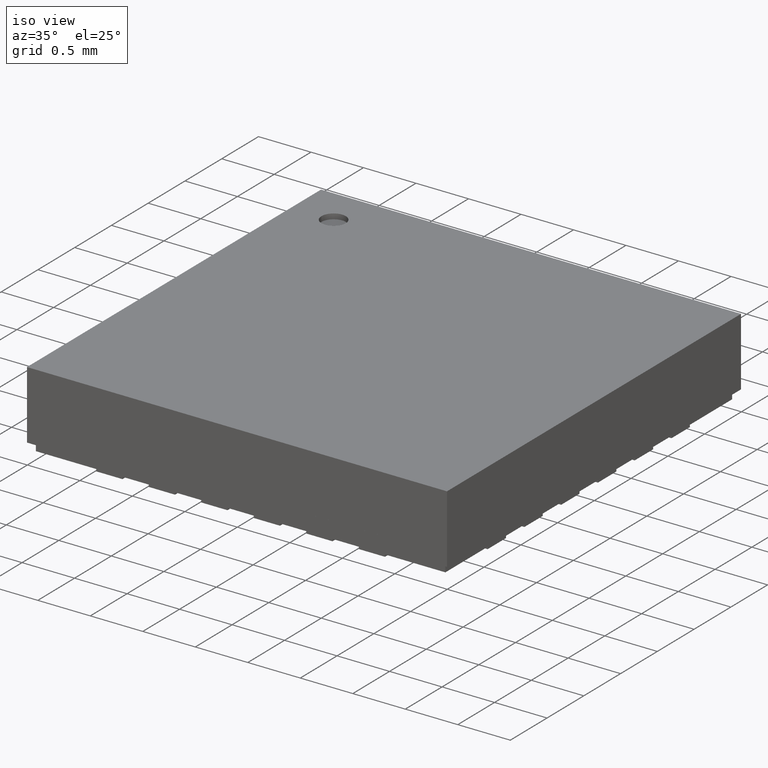
[diagram: clean part render]
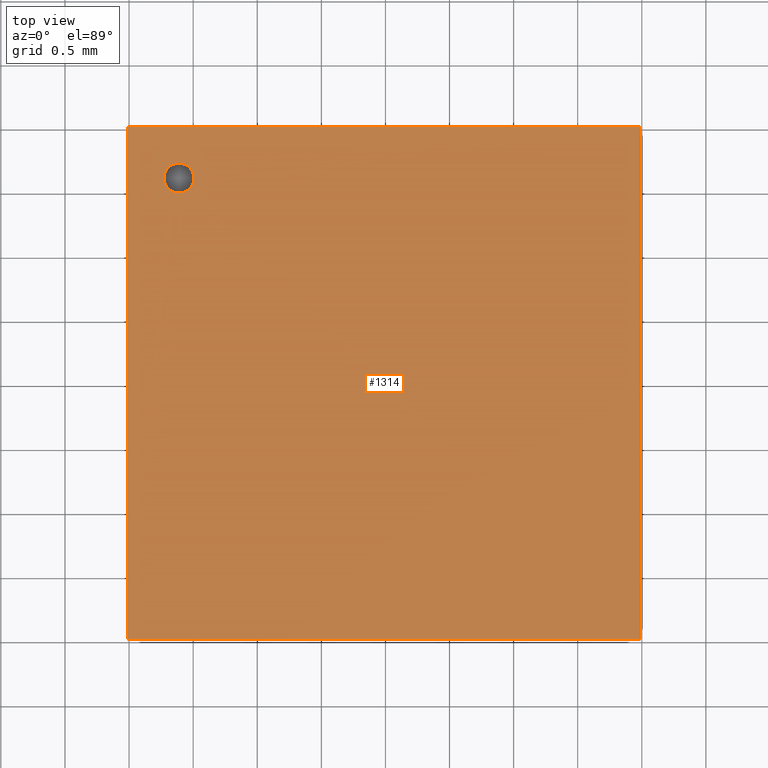
[diagram: tour spotlight — one face highlighted and labeled with its STEP entity id]
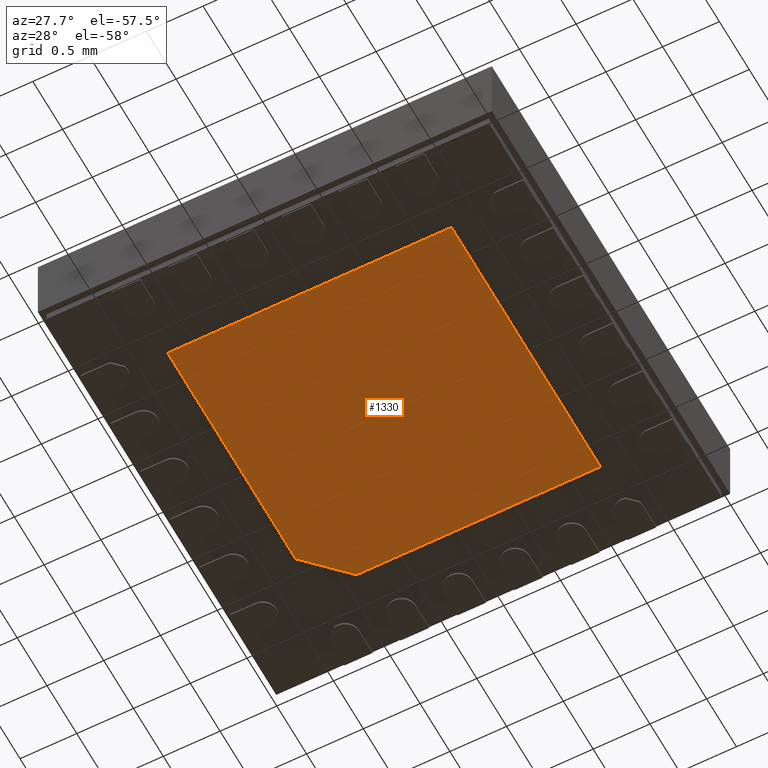
[diagram: tour spotlight — one face highlighted and labeled with its STEP entity id]
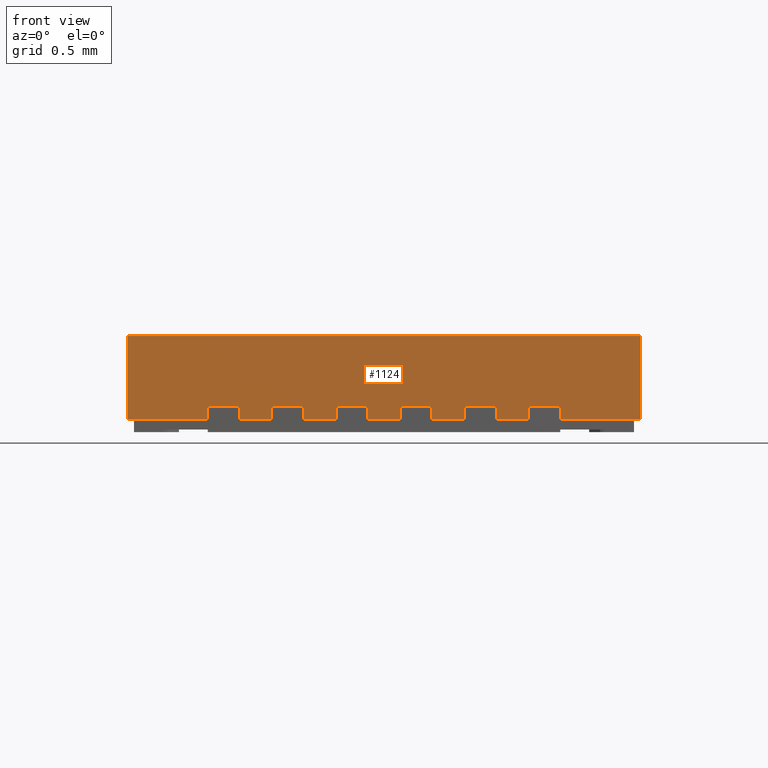
[diagram: tour spotlight — one face highlighted and labeled with its STEP entity id]
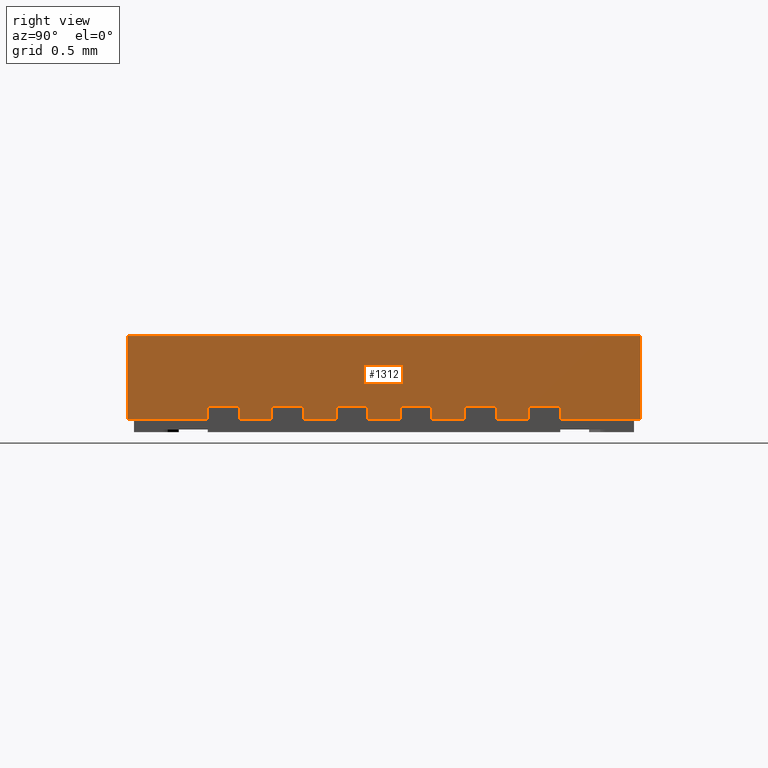
[diagram: tour spotlight — one face highlighted and labeled with its STEP entity id]
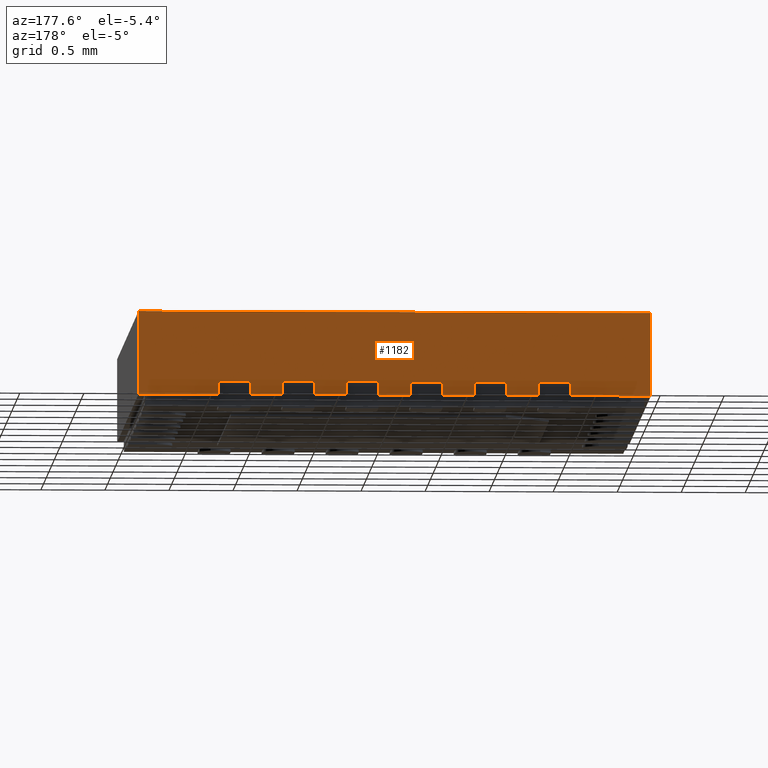
[diagram: tour spotlight — one face highlighted and labeled with its STEP entity id]
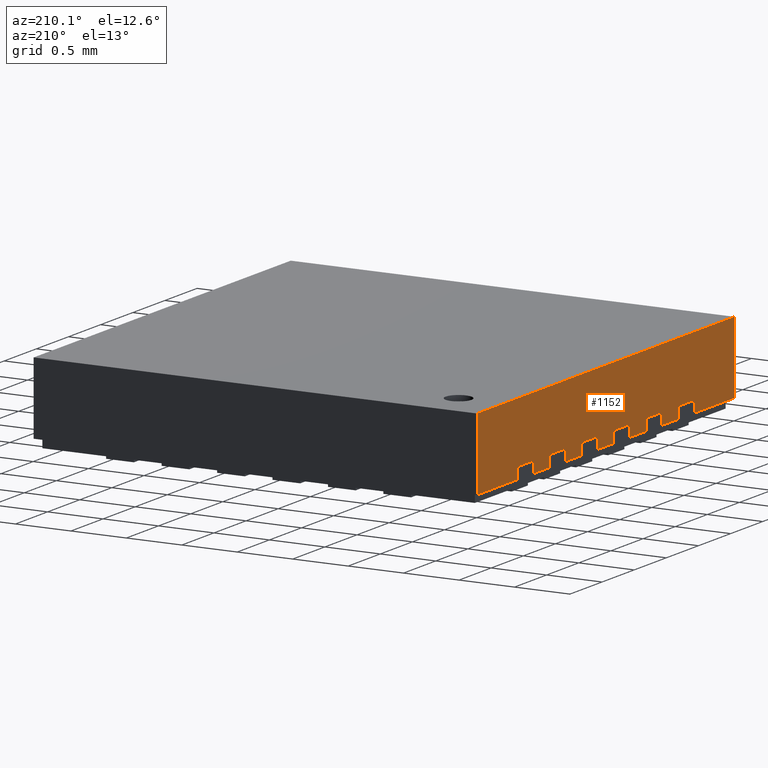
[diagram: tour spotlight — one face highlighted and labeled with its STEP entity id]
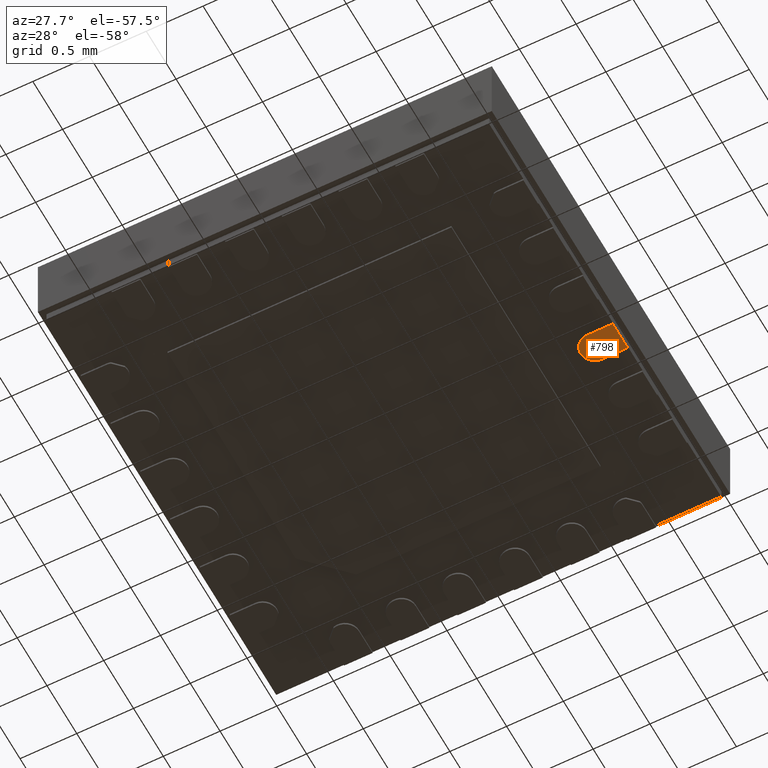
[diagram: tour spotlight — one face highlighted and labeled with its STEP entity id]
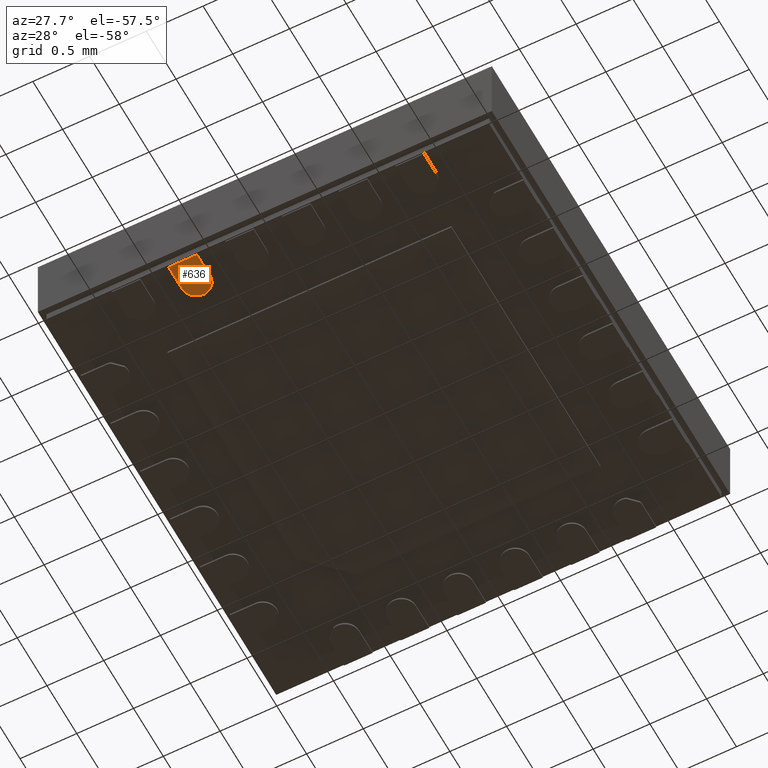
[diagram: tour spotlight — one face highlighted and labeled with its STEP entity id]
A machine part: a face-by-face anatomy tour. The part has 394 B-rep faces; the first image is the clean iso view, then the 8 largest visible faces are spotlighted one at a time (largest first), each with its STEP entity span.

Face 1 — top view, entity #1314. In plain terms, the highlighted planar face has unit normal (0, 0, 1).
Definition (entity closure, byte-faithful):
#1314=ADVANCED_FACE('',(#2582,#2583),#2584,.T.);
#2582=FACE_BOUND('',#3875,.T.);
#2583=FACE_OUTER_BOUND('',#3876,.T.);
#2584=PLANE('',#3877);
#3875=EDGE_LOOP('',(#7475,#7476));
#3876=EDGE_LOOP('',(#7477,#7478,#7479,#7480));
#3877=AXIS2_PLACEMENT_3D('',#7481,#7482,#7483);
#7475=ORIENTED_EDGE('',*,*,#8262,.T.);
#7476=ORIENTED_EDGE('',*,*,#8260,.T.);
#7477=ORIENTED_EDGE('',*,*,#8958,.F.);
#7478=ORIENTED_EDGE('',*,*,#8791,.F.);
#7479=ORIENTED_EDGE('',*,*,#8746,.F.);
#7480=ORIENTED_EDGE('',*,*,#8707,.F.);
#7481=CARTESIAN_POINT('',(-0.0112166299113343,0.0112165452801234,0.75));
#7482=DIRECTION('',(0.0,0.0,1.0));
#7483=DIRECTION('',(1.0,0.0,0.0));
#8260=EDGE_CURVE('',#10018,#10022,#10024,.T.);
#8262=EDGE_CURVE('',#10022,#10018,#10026,.T.);
#8707=EDGE_CURVE('',#10748,#10750,#10751,.T.);
#8746=EDGE_CURVE('',#10750,#10800,#10801,.T.);
#8791=EDGE_CURVE('',#10800,#10858,#10859,.T.);
#8958=EDGE_CURVE('',#10858,#10748,#11068,.T.);
#10018=VERTEX_POINT('',#12554);
#10022=VERTEX_POINT('',#12559);
#10024=CIRCLE('',#12562,0.116318990685727);
#10026=CIRCLE('',#12564,0.116318990685727);
#10748=VERTEX_POINT('',#13613);
#10750=VERTEX_POINT('',#13616);
#10751=LINE('',#13617,#13618);
#10800=VERTEX_POINT('',#13686);
#10801=LINE('',#13687,#13688);
#10858=VERTEX_POINT('',#13769);
#10859=LINE('',#13770,#13771);
#11068=LINE('',#14060,#14061);
#12554=CARTESIAN_POINT('',(-1.49489763922552,1.61121654528009,0.75));
#12559=CARTESIAN_POINT('',(-1.72753562059697,1.61121654528009,0.75));
#12562=AXIS2_PLACEMENT_3D('',#14725,#14726,#14727);
#12564=AXIS2_PLACEMENT_3D('',#14728,#14729,#14730);
#13613=CARTESIAN_POINT('',(1.98878337008867,-1.98878345471982,0.75));
#13616=CARTESIAN_POINT('',(-2.01121662991133,-1.98878345471982,0.75));
#13617=CARTESIAN_POINT('',(-2.01121662991133,-1.98878345471982,0.75));
#13618=VECTOR('',#15161,1.0);
#13686=CARTESIAN_POINT('',(-2.01121662991133,2.01121654528007,0.75));
#13687=CARTESIAN_POINT('',(-2.01121662991133,2.01121654528007,0.75));
#13688=VECTOR('',#15196,1.0);
#13769=CARTESIAN_POINT('',(1.98878337008867,2.01121654528007,0.75));
#13770=CARTESIAN_POINT('',(1.98878337008867,2.01121654528007,0.75));
#13771=VECTOR('',#15236,1.0);
#14060=CARTESIAN_POINT('',(1.98878337008867,-1.98878345471982,0.75));
#14061=VECTOR('',#15380,1.0);
#14725=CARTESIAN_POINT('',(-1.61121662991124,1.61121654528009,0.75));
#14726=DIRECTION('',(0.0,0.0,-1.0));
#14727=DIRECTION('',(1.0,1.90892822931172E-15,0.0));
#14728=CARTESIAN_POINT('',(-1.61121662991124,1.61121654528009,0.75));
#14729=DIRECTION('',(0.0,0.0,-1.0));
#14730=DIRECTION('',(1.0,1.90892822931172E-15,0.0));
#15161=DIRECTION('',(-1.0,-0.0,-0.0));
#15196=DIRECTION('',(0.0,1.0,0.0));
#15236=DIRECTION('',(1.0,0.0,0.0));
#15380=DIRECTION('',(-0.0,-1.0,-0.0));

Face 2 — auxiliary view, entity #1330. In plain terms, the highlighted planar face has unit normal (0, 0, 1).
Definition (entity closure, byte-faithful):
#1330=ADVANCED_FACE('',(#2606),#2607,.F.);
#2606=FACE_OUTER_BOUND('',#3898,.T.);
#2607=PLANE('',#3899);
#3898=EDGE_LOOP('',(#7535,#7536,#7537,#7538,#7539));
#3899=AXIS2_PLACEMENT_3D('',#7540,#7541,#7542);
#7535=ORIENTED_EDGE('',*,*,#8980,.F.);
#7536=ORIENTED_EDGE('',*,*,#8964,.F.);
#7537=ORIENTED_EDGE('',*,*,#8969,.F.);
#7538=ORIENTED_EDGE('',*,*,#8973,.F.);
#7539=ORIENTED_EDGE('',*,*,#8977,.F.);
#7540=CARTESIAN_POINT('',(0.0175381299973912,-0.0175382146286024,0.0));
#7541=DIRECTION('',(0.0,0.0,1.0));
#7542=DIRECTION('',(1.0,0.0,0.0));
#8964=EDGE_CURVE('',#11075,#11077,#11078,.T.);
#8969=EDGE_CURVE('',#11083,#11075,#11085,.T.);
#8973=EDGE_CURVE('',#11089,#11083,#11091,.T.);
#8977=EDGE_CURVE('',#11095,#11089,#11097,.T.);
#8980=EDGE_CURVE('',#11077,#11095,#11100,.T.);
#11075=VERTEX_POINT('',#14069);
#11077=VERTEX_POINT('',#14072);
#11078=LINE('',#14073,#14074);
#11083=VERTEX_POINT('',#14081);
#11085=LINE('',#14084,#14085);
#11089=VERTEX_POINT('',#14090);
#11091=LINE('',#14093,#14094);
#11095=VERTEX_POINT('',#14099);
#11097=LINE('',#14102,#14103);
#11100=LINE('',#14107,#14108);
#14069=CARTESIAN_POINT('',(1.23878337008867,-1.23878345471988,0.0));
#14072=CARTESIAN_POINT('',(1.23878337008867,1.26121654528012,0.0));
#14073=CARTESIAN_POINT('',(1.23878337008867,-1.23878345471988,0.0));
#14074=VECTOR('',#15383,1.0);
#14081=CARTESIAN_POINT('',(-1.26121662991133,-1.23878345471988,0.0));
#14084=CARTESIAN_POINT('',(-1.26121662991133,-1.23878345471988,0.0));
#14085=VECTOR('',#15387,1.0);
#14090=CARTESIAN_POINT('',(-1.26121662991133,0.911216545280101,0.0));
#14093=CARTESIAN_POINT('',(-1.26121662991133,0.911216545280101,0.0));
#14094=VECTOR('',#15390,1.0);
#14099=CARTESIAN_POINT('',(-0.911216629911311,1.26121654528012,0.0));
#14102=CARTESIAN_POINT('',(-0.911216629911311,1.26121654528012,0.0));
#14103=VECTOR('',#15393,1.0);
#14107=CARTESIAN_POINT('',(1.23878337008867,1.26121654528012,0.0));
#14108=VECTOR('',#15395,1.0);
#15383=DIRECTION('',(3.5527136788005E-16,1.0,0.0));
#15387=DIRECTION('',(1.0,-5.32907051820075E-16,0.0));
#15390=DIRECTION('',(-4.13106241720993E-16,-1.0,0.0));
#15393=DIRECTION('',(-0.707106781186548,-0.707106781186548,0.0));
#15395=DIRECTION('',(-1.0,4.13106241720993E-16,0.0));

Face 3 — front view, entity #1124. In plain terms, the highlighted planar face has unit normal (0, -1, 0).
Definition (entity closure, byte-faithful):
#1124=ADVANCED_FACE('',(#2297),#2298,.T.);
#2297=FACE_OUTER_BOUND('',#3590,.T.);
#2298=PLANE('',#3591);
#3590=EDGE_LOOP('',(#6556,#6557,#6558,#6559,#6560,#6561,#6562,#6563,#6564,#6565,#6566,#6567,#6568,#6569,#6570,#6571,#6572,#6573,#6574,#6575,#6576,#6577,#6578,#6579,#6580,#6581,#6582,#6583));
#3591=AXIS2_PLACEMENT_3D('',#6584,#6585,#6586);
#6556=ORIENTED_EDGE('',*,*,#8499,.T.);
#6557=ORIENTED_EDGE('',*,*,#8700,.T.);
#6558=ORIENTED_EDGE('',*,*,#8701,.T.);
#6559=ORIENTED_EDGE('',*,*,#8517,.T.);
#6560=ORIENTED_EDGE('',*,*,#8492,.T.);
#6561=ORIENTED_EDGE('',*,*,#8702,.T.);
#6562=ORIENTED_EDGE('',*,*,#8703,.T.);
#6563=ORIENTED_EDGE('',*,*,#8522,.T.);
#6564=ORIENTED_EDGE('',*,*,#8484,.T.);
#6565=ORIENTED_EDGE('',*,*,#8704,.T.);
#6566=ORIENTED_EDGE('',*,*,#8705,.T.);
#6567=ORIENTED_EDGE('',*,*,#8527,.T.);
#6568=ORIENTED_EDGE('',*,*,#8475,.T.);
#6569=ORIENTED_EDGE('',*,*,#8706,.T.);
#6570=ORIENTED_EDGE('',*,*,#8707,.T.);
#6571=ORIENTED_EDGE('',*,*,#8708,.F.);
#6572=ORIENTED_EDGE('',*,*,#8469,.T.);
#6573=ORIENTED_EDGE('',*,*,#8709,.T.);
#6574=ORIENTED_EDGE('',*,*,#8710,.T.);
#6575=ORIENTED_EDGE('',*,*,#8512,.T.);
#6576=ORIENTED_EDGE('',*,*,#8480,.T.);
#6577=ORIENTED_EDGE('',*,*,#8711,.T.);
#6578=ORIENTED_EDGE('',*,*,#8712,.T.);
#6579=ORIENTED_EDGE('',*,*,#8507,.T.);
#6580=ORIENTED_EDGE('',*,*,#8488,.T.);
#6581=ORIENTED_EDGE('',*,*,#8694,.T.);
#6582=ORIENTED_EDGE('',*,*,#8698,.T.);
#6583=ORIENTED_EDGE('',*,*,#8502,.T.);
#6584=CARTESIAN_POINT('',(-0.0112166299113343,-1.98878345471982,0.02));
#6585=DIRECTION('',(0.0,-1.0,0.0));
#6586=DIRECTION('',(1.0,0.0,0.0));
#8469=EDGE_CURVE('',#10372,#10370,#10373,.T.);
#8475=EDGE_CURVE('',#10383,#10381,#10384,.T.);
#8480=EDGE_CURVE('',#10390,#10388,#10391,.T.);
#8484=EDGE_CURVE('',#10396,#10394,#10397,.T.);
#8488=EDGE_CURVE('',#10402,#10400,#10403,.T.);
#8492=EDGE_CURVE('',#10408,#10406,#10409,.T.);
#8499=EDGE_CURVE('',#10418,#10416,#10419,.T.);
#8502=EDGE_CURVE('',#10422,#10418,#10423,.T.);
#8507=EDGE_CURVE('',#10430,#10402,#10431,.T.);
#8512=EDGE_CURVE('',#10438,#10390,#10439,.T.);
#8517=EDGE_CURVE('',#10446,#10408,#10447,.T.);
#8522=EDGE_CURVE('',#10454,#10396,#10455,.T.);
#8527=EDGE_CURVE('',#10462,#10383,#10463,.T.);
#8694=EDGE_CURVE('',#10400,#10731,#10733,.T.);
#8698=EDGE_CURVE('',#10731,#10422,#10737,.T.);
#8700=EDGE_CURVE('',#10416,#10739,#10740,.T.);
#8701=EDGE_CURVE('',#10739,#10446,#10741,.T.);
#8702=EDGE_CURVE('',#10406,#10742,#10743,.T.);
#8703=EDGE_CURVE('',#10742,#10454,#10744,.T.);
#8704=EDGE_CURVE('',#10394,#10745,#10746,.T.);
#8705=EDGE_CURVE('',#10745,#10462,#10747,.T.);
#8706=EDGE_CURVE('',#10381,#10748,#10749,.T.);
#8707=EDGE_CURVE('',#10748,#10750,#10751,.T.);
#8708=EDGE_CURVE('',#10372,#10750,#10752,.T.);
#8709=EDGE_CURVE('',#10370,#10753,#10754,.T.);
#8710=EDGE_CURVE('',#10753,#10438,#10755,.T.);
#8711=EDGE_CURVE('',#10388,#10756,#10757,.T.);
#8712=EDGE_CURVE('',#10756,#10430,#10758,.T.);
#10370=VERTEX_POINT('',#13066);
#10372=VERTEX_POINT('',#13069);
#10373=LINE('',#13070,#13071);
#10381=VERTEX_POINT('',#13082);
#10383=VERTEX_POINT('',#13085);
#10384=LINE('',#13086,#13087);
#10388=VERTEX_POINT('',#13093);
#10390=VERTEX_POINT('',#13096);
#10391=LINE('',#13097,#13098);
#10394=VERTEX_POINT('',#13102);
#10396=VERTEX_POINT('',#13105);
#10397=LINE('',#13106,#13107);
#10400=VERTEX_POINT('',#13111);
#10402=VERTEX_POINT('',#13114);
#10403=LINE('',#13115,#13116);
#10406=VERTEX_POINT('',#13120);
#10408=VERTEX_POINT('',#13123);
#10409=LINE('',#13124,#13125);
#10416=VERTEX_POINT('',#13135);
#10418=VERTEX_POINT('',#13138);
#10419=LINE('',#13139,#13140);
#10422=VERTEX_POINT('',#13144);
#10423=LINE('',#13145,#13146);
#10430=VERTEX_POINT('',#13156);
#10431=LINE('',#13157,#13158);
#10438=VERTEX_POINT('',#13168);
#10439=LINE('',#13169,#13170);
#10446=VERTEX_POINT('',#13180);
#10447=LINE('',#13181,#13182);
#10454=VERTEX_POINT('',#13192);
#10455=LINE('',#13193,#13194);
#10462=VERTEX_POINT('',#13204);
#10463=LINE('',#13205,#13206);
#10731=VERTEX_POINT('',#13587);
#10733=LINE('',#13590,#13591);
#10737=LINE('',#13595,#13596);
#10739=VERTEX_POINT('',#13598);
#10740=LINE('',#13599,#13600);
#10741=LINE('',#13601,#13602);
#10742=VERTEX_POINT('',#13603);
#10743=LINE('',#13604,#13605);
#10744=LINE('',#13606,#13607);
#10745=VERTEX_POINT('',#13608);
#10746=LINE('',#13609,#13610);
#10747=LINE('',#13611,#13612);
#10748=VERTEX_POINT('',#13613);
#10749=LINE('',#13614,#13615);
#10750=VERTEX_POINT('',#13616);
#10751=LINE('',#13617,#13618);
#10752=LINE('',#13619,#13620);
#10753=VERTEX_POINT('',#13621);
#10754=LINE('',#13622,#13623);
#10755=LINE('',#13624,#13625);
#10756=VERTEX_POINT('',#13626);
#10757=LINE('',#13627,#13628);
#10758=LINE('',#13629,#13630);
#13066=CARTESIAN_POINT('',(-1.38621662990974,-1.98878345471982,0.1));
#13069=CARTESIAN_POINT('',(-2.01121662991133,-1.98878345471982,0.1));
#13070=CARTESIAN_POINT('',(0.976283370088677,-1.98878345471982,0.1));
#13071=VECTOR('',#14893,1.0);
#13082=CARTESIAN_POINT('',(1.98878337008867,-1.98878345471982,0.1));
#13085=CARTESIAN_POINT('',(1.36378337009026,-1.98878345471982,0.1));
#13086=CARTESIAN_POINT('',(0.976283370088677,-1.98878345471982,0.1));
#13087=VECTOR('',#14898,1.0);
#13093=CARTESIAN_POINT('',(-0.886216629909743,-1.98878345471982,0.1));
#13096=CARTESIAN_POINT('',(-1.13621662990974,-1.98878345471982,0.1));
#13097=CARTESIAN_POINT('',(0.976283370088677,-1.98878345471982,0.1));
#13098=VECTOR('',#14902,1.0);
#13102=CARTESIAN_POINT('',(1.11378337009026,-1.98878345471982,0.1));
#13105=CARTESIAN_POINT('',(0.863783370090257,-1.98878345471982,0.1));
#13106=CARTESIAN_POINT('',(0.976283370088677,-1.98878345471982,0.1));
#13107=VECTOR('',#14905,1.0);
#13111=CARTESIAN_POINT('',(-0.386216629909743,-1.98878345471982,0.1));
#13114=CARTESIAN_POINT('',(-0.636216629909743,-1.98878345471982,0.1));
#13115=CARTESIAN_POINT('',(0.976283370088677,-1.98878345471982,0.1));
#13116=VECTOR('',#14908,1.0);
#13120=CARTESIAN_POINT('',(0.613783370090257,-1.98878345471982,0.1));
#13123=CARTESIAN_POINT('',(0.363783370090257,-1.98878345471982,0.1));
#13124=CARTESIAN_POINT('',(0.976283370088677,-1.98878345471982,0.1));
#13125=VECTOR('',#14911,1.0);
#13135=CARTESIAN_POINT('',(0.113783370090257,-1.98878345471982,0.1));
#13138=CARTESIAN_POINT('',(-0.136216629909743,-1.98878345471982,0.1));
#13139=CARTESIAN_POINT('',(0.976283370088677,-1.98878345471982,0.1));
#13140=VECTOR('',#14916,1.0);
#13144=CARTESIAN_POINT('',(-0.136216629909743,-1.98878345471985,0.203));
#13145=CARTESIAN_POINT('',(-0.136216629909743,-1.98878345471982,0.01));
#13146=VECTOR('',#14918,1.0);
#13156=CARTESIAN_POINT('',(-0.636216629909743,-1.98878345471986,0.203));
#13157=CARTESIAN_POINT('',(-0.636216629909743,-1.98878345471982,0.01));
#13158=VECTOR('',#14922,1.0);
#13168=CARTESIAN_POINT('',(-1.13621662990974,-1.98878345471986,0.203));
#13169=CARTESIAN_POINT('',(-1.13621662990974,-1.98878345471982,0.01));
#13170=VECTOR('',#14926,1.0);
#13180=CARTESIAN_POINT('',(0.363783370090257,-1.98878345471984,0.203));
#13181=CARTESIAN_POINT('',(0.363783370090257,-1.98878345471982,0.01));
#13182=VECTOR('',#14930,1.0);
#13192=CARTESIAN_POINT('',(0.863783370090258,-1.98878345471984,0.203));
#13193=CARTESIAN_POINT('',(0.863783370090258,-1.98878345471982,0.01));
#13194=VECTOR('',#14934,1.0);
#13204=CARTESIAN_POINT('',(1.36378337009026,-1.98878345471983,0.203));
#13205=CARTESIAN_POINT('',(1.36378337009026,-1.98878345471982,0.01));
#13206=VECTOR('',#14938,1.0);
#13587=CARTESIAN_POINT('',(-0.386216629909743,-1.98878345471985,0.203));
#13590=CARTESIAN_POINT('',(-0.386216629909743,-1.98878345471985,0.01));
#13591=VECTOR('',#15149,1.0);
#13595=CARTESIAN_POINT('',(-0.136216629910539,-1.98878345471982,0.203));
#13596=VECTOR('',#15153,1.0);
#13598=CARTESIAN_POINT('',(0.113783370090258,-1.98878345471985,0.203));
#13599=CARTESIAN_POINT('',(0.113783370090258,-1.98878345471985,0.01));
#13600=VECTOR('',#15154,1.0);
#13601=CARTESIAN_POINT('',(0.113783370089461,-1.98878345471982,0.203));
#13602=VECTOR('',#15155,1.0);
#13603=CARTESIAN_POINT('',(0.613783370090257,-1.98878345471984,0.203));
#13604=CARTESIAN_POINT('',(0.613783370090257,-1.98878345471984,0.01));
#13605=VECTOR('',#15156,1.0);
#13606=CARTESIAN_POINT('',(0.363783370089461,-1.98878345471982,0.203));
#13607=VECTOR('',#15157,1.0);
#13608=CARTESIAN_POINT('',(1.11378337009026,-1.98878345471983,0.203));
#13609=CARTESIAN_POINT('',(1.11378337009026,-1.98878345471983,0.01));
#13610=VECTOR('',#15158,1.0);
#13611=CARTESIAN_POINT('',(0.613436986502316,-1.98878345471982,0.203));
#13612=VECTOR('',#15159,1.0);
#13613=CARTESIAN_POINT('',(1.98878337008867,-1.98878345471982,0.75));
#13614=CARTESIAN_POINT('',(1.98878337008867,-1.98878345471982,0.02));
#13615=VECTOR('',#15160,1.0);
#13616=CARTESIAN_POINT('',(-2.01121662991133,-1.98878345471982,0.75));
#13617=CARTESIAN_POINT('',(-2.01121662991133,-1.98878345471982,0.75));
#13618=VECTOR('',#15161,1.0);
#13619=CARTESIAN_POINT('',(-2.01121662991133,-1.98878345471982,0.02));
#13620=VECTOR('',#15162,1.0);
#13621=CARTESIAN_POINT('',(-1.38621662990974,-1.98878345471987,0.203));
#13622=CARTESIAN_POINT('',(-1.38621662990974,-1.98878345471987,0.01));
#13623=VECTOR('',#15163,1.0);
#13624=CARTESIAN_POINT('',(-0.635870246323488,-1.98878345471982,0.203));
#13625=VECTOR('',#15164,1.0);
#13626=CARTESIAN_POINT('',(-0.886216629909743,-1.98878345471986,0.203));
#13627=CARTESIAN_POINT('',(-0.886216629909743,-1.98878345471986,0.01));
#13628=VECTOR('',#15165,1.0);
#13629=CARTESIAN_POINT('',(-0.386216629910539,-1.98878345471982,0.203));
#13630=VECTOR('',#15166,1.0);
#14893=DIRECTION('',(1.0,0.0,-0.0));
#14898=DIRECTION('',(1.0,0.0,-0.0));
#14902=DIRECTION('',(1.0,0.0,-0.0));
#14905=DIRECTION('',(1.0,0.0,-0.0));
#14908=DIRECTION('',(1.0,0.0,-0.0));
#14911=DIRECTION('',(1.0,0.0,-0.0));
#14916=DIRECTION('',(1.0,0.0,-0.0));
#14918=DIRECTION('',(0.0,0.0,-1.0));
#14922=DIRECTION('',(0.0,0.0,-1.0));
#14926=DIRECTION('',(0.0,0.0,-1.0));
#14930=DIRECTION('',(0.0,0.0,-1.0));
#14934=DIRECTION('',(0.0,-0.0,-1.0));
#14938=DIRECTION('',(0.0,0.0,-1.0));
#15149=DIRECTION('',(0.0,0.0,1.0));
#15153=DIRECTION('',(1.0,0.0,-0.0));
#15154=DIRECTION('',(0.0,0.0,1.0));
#15155=DIRECTION('',(1.0,0.0,-0.0));
#15156=DIRECTION('',(0.0,0.0,1.0));
#15157=DIRECTION('',(1.0,0.0,-0.0));
#15158=DIRECTION('',(0.0,0.0,1.0));
#15159=DIRECTION('',(1.0,0.0,-0.0));
#15160=DIRECTION('',(0.0,0.0,1.0));
#15161=DIRECTION('',(-1.0,-0.0,-0.0));
#15162=DIRECTION('',(0.0,0.0,1.0));
#15163=DIRECTION('',(0.0,0.0,1.0));
#15164=DIRECTION('',(1.0,0.0,-0.0));
#15165=DIRECTION('',(0.0,0.0,1.0));
#15166=DIRECTION('',(1.0,0.0,-0.0));

Face 4 — right view, entity #1312. In plain terms, the highlighted planar face has unit normal (1, 0, 0).
Definition (entity closure, byte-faithful):
#1312=ADVANCED_FACE('',(#2579),#2580,.T.);
#2579=FACE_OUTER_BOUND('',#3872,.T.);
#2580=PLANE('',#3873);
#3872=EDGE_LOOP('',(#7443,#7444,#7445,#7446,#7447,#7448,#7449,#7450,#7451,#7452,#7453,#7454,#7455,#7456,#7457,#7458,#7459,#7460,#7461,#7462,#7463,#7464,#7465,#7466,#7467,#7468,#7469,#7470));
#3873=AXIS2_PLACEMENT_3D('',#7471,#7472,#7473);
#7443=ORIENTED_EDGE('',*,*,#8474,.T.);
#7444=ORIENTED_EDGE('',*,*,#8902,.T.);
#7445=ORIENTED_EDGE('',*,*,#8904,.T.);
#7446=ORIENTED_EDGE('',*,*,#8597,.T.);
#7447=ORIENTED_EDGE('',*,*,#8465,.T.);
#7448=ORIENTED_EDGE('',*,*,#8888,.T.);
#7449=ORIENTED_EDGE('',*,*,#8890,.T.);
#7450=ORIENTED_EDGE('',*,*,#8602,.T.);
#7451=ORIENTED_EDGE('',*,*,#8457,.T.);
#7452=ORIENTED_EDGE('',*,*,#8880,.T.);
#7453=ORIENTED_EDGE('',*,*,#8882,.T.);
#7454=ORIENTED_EDGE('',*,*,#8607,.T.);
#7455=ORIENTED_EDGE('',*,*,#8449,.T.);
#7456=ORIENTED_EDGE('',*,*,#8872,.T.);
#7457=ORIENTED_EDGE('',*,*,#8874,.T.);
#7458=ORIENTED_EDGE('',*,*,#8612,.T.);
#7459=ORIENTED_EDGE('',*,*,#8441,.T.);
#7460=ORIENTED_EDGE('',*,*,#8864,.T.);
#7461=ORIENTED_EDGE('',*,*,#8866,.T.);
#7462=ORIENTED_EDGE('',*,*,#8688,.T.);
#7463=ORIENTED_EDGE('',*,*,#8433,.T.);
#7464=ORIENTED_EDGE('',*,*,#8856,.T.);
#7465=ORIENTED_EDGE('',*,*,#8858,.T.);
#7466=ORIENTED_EDGE('',*,*,#8587,.T.);
#7467=ORIENTED_EDGE('',*,*,#8426,.T.);
#7468=ORIENTED_EDGE('',*,*,#8792,.T.);
#7469=ORIENTED_EDGE('',*,*,#8958,.T.);
#7470=ORIENTED_EDGE('',*,*,#8706,.F.);
#7471=CARTESIAN_POINT('',(1.98878337008867,0.0112165452801232,0.02));
#7472=DIRECTION('',(1.0,0.0,0.0));
#7473=DIRECTION('',(0.0,1.0,0.0));
#8426=EDGE_CURVE('',#10302,#10306,#10308,.T.);
#8433=EDGE_CURVE('',#10318,#10316,#10319,.T.);
#8441=EDGE_CURVE('',#10330,#10328,#10331,.T.);
#8449=EDGE_CURVE('',#10342,#10340,#10343,.T.);
#8457=EDGE_CURVE('',#10354,#10352,#10355,.T.);
#8465=EDGE_CURVE('',#10366,#10364,#10367,.T.);
#8474=EDGE_CURVE('',#10381,#10378,#10382,.T.);
#8587=EDGE_CURVE('',#10558,#10302,#10559,.T.);
#8597=EDGE_CURVE('',#10574,#10366,#10575,.T.);
#8602=EDGE_CURVE('',#10582,#10354,#10583,.T.);
#8607=EDGE_CURVE('',#10590,#10342,#10591,.T.);
#8612=EDGE_CURVE('',#10598,#10330,#10599,.T.);
#8688=EDGE_CURVE('',#10723,#10318,#10724,.T.);
#8706=EDGE_CURVE('',#10381,#10748,#10749,.T.);
#8792=EDGE_CURVE('',#10306,#10858,#10860,.T.);
#8856=EDGE_CURVE('',#10316,#10939,#10941,.T.);
#8858=EDGE_CURVE('',#10939,#10558,#10943,.T.);
#8864=EDGE_CURVE('',#10328,#10949,#10951,.T.);
#8866=EDGE_CURVE('',#10949,#10723,#10953,.T.);
#8872=EDGE_CURVE('',#10340,#10959,#10961,.T.);
#8874=EDGE_CURVE('',#10959,#10598,#10963,.T.);
#8880=EDGE_CURVE('',#10352,#10969,#10971,.T.);
#8882=EDGE_CURVE('',#10969,#10590,#10973,.T.);
#8888=EDGE_CURVE('',#10364,#10979,#10981,.T.);
#8890=EDGE_CURVE('',#10979,#10582,#10983,.T.);
#8902=EDGE_CURVE('',#10378,#10997,#10999,.T.);
#8904=EDGE_CURVE('',#10997,#10574,#11001,.T.);
#8958=EDGE_CURVE('',#10858,#10748,#11068,.T.);
#10302=VERTEX_POINT('',#12964);
#10306=VERTEX_POINT('',#12970);
#10308=LINE('',#12973,#12974);
#10316=VERTEX_POINT('',#12985);
#10318=VERTEX_POINT('',#12988);
#10319=LINE('',#12989,#12990);
#10328=VERTEX_POINT('',#13003);
#10330=VERTEX_POINT('',#13006);
#10331=LINE('',#13007,#13008);
#10340=VERTEX_POINT('',#13021);
#10342=VERTEX_POINT('',#13024);
#10343=LINE('',#13025,#13026);
#10352=VERTEX_POINT('',#13039);
#10354=VERTEX_POINT('',#13042);
#10355=LINE('',#13043,#13044);
#10364=VERTEX_POINT('',#13057);
#10366=VERTEX_POINT('',#13060);
#10367=LINE('',#13061,#13062);
#10378=VERTEX_POINT('',#13078);
#10381=VERTEX_POINT('',#13082);
#10382=LINE('',#13083,#13084);
#10558=VERTEX_POINT('',#13348);
#10559=LINE('',#13349,#13350);
#10574=VERTEX_POINT('',#13372);
#10575=LINE('',#13373,#13374);
#10582=VERTEX_POINT('',#13384);
#10583=LINE('',#13385,#13386);
#10590=VERTEX_POINT('',#13396);
#10591=LINE('',#13397,#13398);
#10598=VERTEX_POINT('',#13408);
#10599=LINE('',#13409,#13410);
#10723=VERTEX_POINT('',#13575);
#10724=LINE('',#13576,#13577);
#10748=VERTEX_POINT('',#13613);
#10749=LINE('',#13614,#13615);
#10858=VERTEX_POINT('',#13769);
#10860=LINE('',#13772,#13773);
#10939=VERTEX_POINT('',#13881);
#10941=LINE('',#13884,#13885);
#10943=LINE('',#13887,#13888);
#10949=VERTEX_POINT('',#13895);
#10951=LINE('',#13898,#13899);
#10953=LINE('',#13901,#13902);
#10959=VERTEX_POINT('',#13909);
#10961=LINE('',#13912,#13913);
#10963=LINE('',#13915,#13916);
#10969=VERTEX_POINT('',#13923);
#10971=LINE('',#13926,#13927);
#10973=LINE('',#13929,#13930);
#10979=VERTEX_POINT('',#13937);
#10981=LINE('',#13940,#13941);
#10983=LINE('',#13943,#13944);
#10997=VERTEX_POINT('',#13962);
#10999=LINE('',#13965,#13966);
#11001=LINE('',#13968,#13969);
#11068=LINE('',#14060,#14061);
#12964=CARTESIAN_POINT('',(1.98878337008867,1.38621654528183,0.1));
#12970=CARTESIAN_POINT('',(1.98878337008867,2.01121654528007,0.1));
#12973=CARTESIAN_POINT('',(1.98878337008867,0.0237165452801118,0.1));
#12974=VECTOR('',#14861,1.0);
#12985=CARTESIAN_POINT('',(1.98878337008867,1.13621654528177,0.1));
#12988=CARTESIAN_POINT('',(1.98878337008867,0.886216545281828,0.1));
#12989=CARTESIAN_POINT('',(1.98878337008867,0.0237165452801118,0.1));
#12990=VECTOR('',#14866,1.0);
#13003=CARTESIAN_POINT('',(1.98878337008867,0.636216545281772,0.1));
#13006=CARTESIAN_POINT('',(1.98878337008867,0.386216545281828,0.1));
#13007=CARTESIAN_POINT('',(1.98878337008867,0.0237165452801118,0.1));
#13008=VECTOR('',#14872,1.0);
#13021=CARTESIAN_POINT('',(1.98878337008867,0.136216545281772,0.1));
#13024=CARTESIAN_POINT('',(1.98878337008867,-0.113783454718172,0.1));
#13025=CARTESIAN_POINT('',(1.98878337008867,0.0237165452801118,0.1));
#13026=VECTOR('',#14878,1.0);
#13039=CARTESIAN_POINT('',(1.98878337008867,-0.363783454718228,0.1));
#13042=CARTESIAN_POINT('',(1.98878337008867,-0.613783454718172,0.1));
#13043=CARTESIAN_POINT('',(1.98878337008867,0.0237165452801118,0.1));
#13044=VECTOR('',#14884,1.0);
#13057=CARTESIAN_POINT('',(1.98878337008867,-0.863783454718228,0.1));
#13060=CARTESIAN_POINT('',(1.98878337008867,-1.11378345471817,0.1));
#13061=CARTESIAN_POINT('',(1.98878337008867,0.0237165452801118,0.1));
#13062=VECTOR('',#14890,1.0);
#13078=CARTESIAN_POINT('',(1.98878337008867,-1.36378345471823,0.1));
#13082=CARTESIAN_POINT('',(1.98878337008867,-1.98878345471982,0.1));
#13083=CARTESIAN_POINT('',(1.98878337008867,0.0237165452801118,0.1));
#13084=VECTOR('',#14897,1.0);
#13348=CARTESIAN_POINT('',(1.98878337008867,1.38621654528183,0.203));
#13349=CARTESIAN_POINT('',(1.98878337008867,1.38621654528183,0.01));
#13350=VECTOR('',#14986,1.0);
#13372=CARTESIAN_POINT('',(1.98878337008867,-1.11378345471817,0.203));
#13373=CARTESIAN_POINT('',(1.98878337008867,-1.11378345471817,0.01));
#13374=VECTOR('',#14994,1.0);
#13384=CARTESIAN_POINT('',(1.98878337008867,-0.613783454718172,0.203));
#13385=CARTESIAN_POINT('',(1.98878337008867,-0.613783454718172,0.01));
#13386=VECTOR('',#14998,1.0);
#13396=CARTESIAN_POINT('',(1.98878337008867,-0.113783454718172,0.203));
#13397=CARTESIAN_POINT('',(1.98878337008867,-0.113783454718172,0.01));
#13398=VECTOR('',#15002,1.0);
#13408=CARTESIAN_POINT('',(1.98878337008867,0.386216545281828,0.203));
#13409=CARTESIAN_POINT('',(1.98878337008867,0.386216545281828,0.01));
#13410=VECTOR('',#15006,1.0);
#13575=CARTESIAN_POINT('',(1.98878337008866,0.886216545281828,0.203));
#13576=CARTESIAN_POINT('',(1.98878337008867,0.886216545281828,0.01));
#13577=VECTOR('',#15144,1.0);
#13613=CARTESIAN_POINT('',(1.98878337008867,-1.98878345471982,0.75));
#13614=CARTESIAN_POINT('',(1.98878337008867,-1.98878345471982,0.02));
#13615=VECTOR('',#15160,1.0);
#13769=CARTESIAN_POINT('',(1.98878337008867,2.01121654528007,0.75));
#13772=CARTESIAN_POINT('',(1.98878337008867,2.01121654528007,0.02));
#13773=VECTOR('',#15237,1.0);
#13881=CARTESIAN_POINT('',(1.98878337008867,1.13621654528177,0.203));
#13884=CARTESIAN_POINT('',(1.98878337008867,1.13621654528177,0.01));
#13885=VECTOR('',#15295,1.0);
#13887=CARTESIAN_POINT('',(1.98878337008867,0.635870161693816,0.203));
#13888=VECTOR('',#15296,1.0);
#13895=CARTESIAN_POINT('',(1.98878337008867,0.636216545281772,0.203));
#13898=CARTESIAN_POINT('',(1.98878337008867,0.636216545281772,0.01));
#13899=VECTOR('',#15302,1.0);
#13901=CARTESIAN_POINT('',(1.98878337008867,0.386216545280962,0.203));
#13902=VECTOR('',#15303,1.0);
#13909=CARTESIAN_POINT('',(1.98878337008867,0.136216545281772,0.203));
#13912=CARTESIAN_POINT('',(1.98878337008867,0.136216545281772,0.01));
#13913=VECTOR('',#15309,1.0);
#13915=CARTESIAN_POINT('',(1.98878337008867,0.136216545280962,0.203));
#13916=VECTOR('',#15310,1.0);
#13923=CARTESIAN_POINT('',(1.98878337008867,-0.363783454718228,0.203));
#13926=CARTESIAN_POINT('',(1.98878337008867,-0.363783454718228,0.01));
#13927=VECTOR('',#15316,1.0);
#13929=CARTESIAN_POINT('',(1.98878337008867,-0.113783454719038,0.203));
#13930=VECTOR('',#15317,1.0);
#13937=CARTESIAN_POINT('',(1.98878337008867,-0.863783454718228,0.203));
#13940=CARTESIAN_POINT('',(1.98878337008867,-0.863783454718228,0.01));
#13941=VECTOR('',#15323,1.0);
#13943=CARTESIAN_POINT('',(1.98878337008867,-0.363783454719038,0.203));
#13944=VECTOR('',#15324,1.0);
#13962=CARTESIAN_POINT('',(1.98878337008867,-1.36378345471823,0.203));
#13965=CARTESIAN_POINT('',(1.98878337008867,-1.36378345471823,0.01));
#13966=VECTOR('',#15336,1.0);
#13968=CARTESIAN_POINT('',(1.98878337008867,-0.613437071131991,0.203));
#13969=VECTOR('',#15337,1.0);
#14060=CARTESIAN_POINT('',(1.98878337008867,-1.98878345471982,0.75));
#14061=VECTOR('',#15380,1.0);
#14861=DIRECTION('',(0.0,1.0,0.0));
#14866=DIRECTION('',(0.0,1.0,0.0));
#14872=DIRECTION('',(0.0,1.0,0.0));
#14878=DIRECTION('',(0.0,1.0,0.0));
#14884=DIRECTION('',(0.0,1.0,0.0));
#14890=DIRECTION('',(0.0,1.0,0.0));
#14897=DIRECTION('',(0.0,1.0,0.0));
#14986=DIRECTION('',(0.0,-0.0,-1.0));
#14994=DIRECTION('',(0.0,-0.0,-1.0));
#14998=DIRECTION('',(0.0,-0.0,-1.0));
#15002=DIRECTION('',(0.0,-0.0,-1.0));
#15006=DIRECTION('',(0.0,-0.0,-1.0));
#15144=DIRECTION('',(0.0,-0.0,-1.0));
#15160=DIRECTION('',(0.0,0.0,1.0));
#15237=DIRECTION('',(0.0,0.0,1.0));
#15295=DIRECTION('',(-0.0,0.0,1.0));
#15296=DIRECTION('',(0.0,1.0,0.0));
#15302=DIRECTION('',(-0.0,0.0,1.0));
#15303=DIRECTION('',(0.0,1.0,0.0));
#15309=DIRECTION('',(-0.0,0.0,1.0));
#15310=DIRECTION('',(0.0,1.0,0.0));
#15316=DIRECTION('',(-0.0,0.0,1.0));
#15317=DIRECTION('',(0.0,1.0,0.0));
#15323=DIRECTION('',(-0.0,0.0,1.0));
#15324=DIRECTION('',(0.0,1.0,0.0));
#15336=DIRECTION('',(-0.0,0.0,1.0));
#15337=DIRECTION('',(0.0,1.0,0.0));
#15380=DIRECTION('',(-0.0,-1.0,-0.0));

Face 5 — auxiliary view, entity #1182. In plain terms, the highlighted planar face has unit normal (0, 1, -0).
Definition (entity closure, byte-faithful):
#1182=ADVANCED_FACE('',(#2384),#2385,.T.);
#2384=FACE_OUTER_BOUND('',#3677,.T.);
#2385=PLANE('',#3678);
#3677=EDGE_LOOP('',(#6856,#6857,#6858,#6859,#6860,#6861,#6862,#6863,#6864,#6865,#6866,#6867,#6868,#6869,#6870,#6871,#6872,#6873,#6874,#6875,#6876,#6877,#6878,#6879,#6880,#6881,#6882,#6883));
#3678=AXIS2_PLACEMENT_3D('',#6884,#6885,#6886);
#6856=ORIENTED_EDGE('',*,*,#8420,.T.);
#6857=ORIENTED_EDGE('',*,*,#8747,.T.);
#6858=ORIENTED_EDGE('',*,*,#8791,.T.);
#6859=ORIENTED_EDGE('',*,*,#8792,.F.);
#6860=ORIENTED_EDGE('',*,*,#8425,.T.);
#6861=ORIENTED_EDGE('',*,*,#8793,.T.);
#6862=ORIENTED_EDGE('',*,*,#8794,.T.);
#6863=ORIENTED_EDGE('',*,*,#8592,.T.);
#6864=ORIENTED_EDGE('',*,*,#8415,.T.);
#6865=ORIENTED_EDGE('',*,*,#8795,.T.);
#6866=ORIENTED_EDGE('',*,*,#8796,.T.);
#6867=ORIENTED_EDGE('',*,*,#8582,.T.);
#6868=ORIENTED_EDGE('',*,*,#8407,.T.);
#6869=ORIENTED_EDGE('',*,*,#8797,.T.);
#6870=ORIENTED_EDGE('',*,*,#8798,.T.);
#6871=ORIENTED_EDGE('',*,*,#8577,.T.);
#6872=ORIENTED_EDGE('',*,*,#8399,.T.);
#6873=ORIENTED_EDGE('',*,*,#8799,.T.);
#6874=ORIENTED_EDGE('',*,*,#8800,.T.);
#6875=ORIENTED_EDGE('',*,*,#8572,.T.);
#6876=ORIENTED_EDGE('',*,*,#8403,.T.);
#6877=ORIENTED_EDGE('',*,*,#8801,.T.);
#6878=ORIENTED_EDGE('',*,*,#8802,.T.);
#6879=ORIENTED_EDGE('',*,*,#8567,.T.);
#6880=ORIENTED_EDGE('',*,*,#8411,.T.);
#6881=ORIENTED_EDGE('',*,*,#8782,.T.);
#6882=ORIENTED_EDGE('',*,*,#8789,.T.);
#6883=ORIENTED_EDGE('',*,*,#8562,.T.);
#6884=CARTESIAN_POINT('',(-0.0112166299113341,2.01121654528007,0.02));
#6885=DIRECTION('',(0.0,1.0,-0.0));
#6886=DIRECTION('',(-1.0,0.0,0.0));
#8399=EDGE_CURVE('',#10266,#10264,#10267,.T.);
#8403=EDGE_CURVE('',#10272,#10270,#10273,.T.);
#8407=EDGE_CURVE('',#10278,#10276,#10279,.T.);
#8411=EDGE_CURVE('',#10284,#10282,#10285,.T.);
#8415=EDGE_CURVE('',#10290,#10288,#10291,.T.);
#8420=EDGE_CURVE('',#10298,#10296,#10299,.T.);
#8425=EDGE_CURVE('',#10306,#10304,#10307,.T.);
#8562=EDGE_CURVE('',#10518,#10298,#10519,.T.);
#8567=EDGE_CURVE('',#10526,#10284,#10527,.T.);
#8572=EDGE_CURVE('',#10534,#10272,#10535,.T.);
#8577=EDGE_CURVE('',#10542,#10266,#10543,.T.);
#8582=EDGE_CURVE('',#10550,#10278,#10551,.T.);
#8592=EDGE_CURVE('',#10566,#10290,#10567,.T.);
#8747=EDGE_CURVE('',#10296,#10800,#10802,.T.);
#8782=EDGE_CURVE('',#10282,#10846,#10848,.T.);
#8789=EDGE_CURVE('',#10846,#10518,#10856,.T.);
#8791=EDGE_CURVE('',#10800,#10858,#10859,.T.);
#8792=EDGE_CURVE('',#10306,#10858,#10860,.T.);
#8793=EDGE_CURVE('',#10304,#10861,#10862,.T.);
#8794=EDGE_CURVE('',#10861,#10566,#10863,.T.);
#8795=EDGE_CURVE('',#10288,#10864,#10865,.T.);
#8796=EDGE_CURVE('',#10864,#10550,#10866,.T.);
#8797=EDGE_CURVE('',#10276,#10867,#10868,.T.);
#8798=EDGE_CURVE('',#10867,#10542,#10869,.T.);
#8799=EDGE_CURVE('',#10264,#10870,#10871,.T.);
#8800=EDGE_CURVE('',#10870,#10534,#10872,.T.);
#8801=EDGE_CURVE('',#10270,#10873,#10874,.T.);
#8802=EDGE_CURVE('',#10873,#10526,#10875,.T.);
#10264=VERTEX_POINT('',#12907);
#10266=VERTEX_POINT('',#12910);
#10267=LINE('',#12911,#12912);
#10270=VERTEX_POINT('',#12916);
#10272=VERTEX_POINT('',#12919);
#10273=LINE('',#12920,#12921);
#10276=VERTEX_POINT('',#12925);
#10278=VERTEX_POINT('',#12928);
#10279=LINE('',#12929,#12930);
#10282=VERTEX_POINT('',#12934);
#10284=VERTEX_POINT('',#12937);
#10285=LINE('',#12938,#12939);
#10288=VERTEX_POINT('',#12943);
#10290=VERTEX_POINT('',#12946);
#10291=LINE('',#12947,#12948);
#10296=VERTEX_POINT('',#12955);
#10298=VERTEX_POINT('',#12958);
#10299=LINE('',#12959,#12960);
#10304=VERTEX_POINT('',#12967);
#10306=VERTEX_POINT('',#12970);
#10307=LINE('',#12971,#12972);
#10518=VERTEX_POINT('',#13288);
#10519=LINE('',#13289,#13290);
#10526=VERTEX_POINT('',#13300);
#10527=LINE('',#13301,#13302);
#10534=VERTEX_POINT('',#13312);
#10535=LINE('',#13313,#13314);
#10542=VERTEX_POINT('',#13324);
#10543=LINE('',#13325,#13326);
#10550=VERTEX_POINT('',#13336);
#10551=LINE('',#13337,#13338);
#10566=VERTEX_POINT('',#13360);
#10567=LINE('',#13361,#13362);
#10800=VERTEX_POINT('',#13686);
#10802=LINE('',#13689,#13690);
#10846=VERTEX_POINT('',#13752);
#10848=LINE('',#13755,#13756);
#10856=LINE('',#13766,#13767);
#10858=VERTEX_POINT('',#13769);
#10859=LINE('',#13770,#13771);
#10860=LINE('',#13772,#13773);
#10861=VERTEX_POINT('',#13774);
#10862=LINE('',#13775,#13776);
#10863=LINE('',#13777,#13778);
#10864=VERTEX_POINT('',#13779);
#10865=LINE('',#13780,#13781);
#10866=LINE('',#13782,#13783);
#10867=VERTEX_POINT('',#13784);
#10868=LINE('',#13785,#13786);
#10869=LINE('',#13787,#13788);
#10870=VERTEX_POINT('',#13789);
#10871=LINE('',#13790,#13791);
#10872=LINE('',#13792,#13793);
#10873=VERTEX_POINT('',#13794);
#10874=LINE('',#13795,#13796);
#10875=LINE('',#13797,#13798);
#12907=CARTESIAN_POINT('',(-0.136216629912926,2.01121654528007,0.1));
#12910=CARTESIAN_POINT('',(0.113783370087074,2.01121654528007,0.1));
#12911=CARTESIAN_POINT('',(0.976283370088677,2.01121654528007,0.1));
#12912=VECTOR('',#14840,1.0);
#12916=CARTESIAN_POINT('',(-0.636216629912926,2.01121654528007,0.1));
#12919=CARTESIAN_POINT('',(-0.386216629912926,2.01121654528007,0.1));
#12920=CARTESIAN_POINT('',(0.976283370088677,2.01121654528007,0.1));
#12921=VECTOR('',#14843,1.0);
#12925=CARTESIAN_POINT('',(0.363783370087074,2.01121654528007,0.1));
#12928=CARTESIAN_POINT('',(0.613783370087074,2.01121654528007,0.1));
#12929=CARTESIAN_POINT('',(0.976283370088677,2.01121654528007,0.1));
#12930=VECTOR('',#14846,1.0);
#12934=CARTESIAN_POINT('',(-1.13621662991293,2.01121654528007,0.1));
#12937=CARTESIAN_POINT('',(-0.886216629912926,2.01121654528007,0.1));
#12938=CARTESIAN_POINT('',(0.976283370088677,2.01121654528007,0.1));
#12939=VECTOR('',#14849,1.0);
#12943=CARTESIAN_POINT('',(0.863783370087074,2.01121654528007,0.1));
#12946=CARTESIAN_POINT('',(1.11378337008707,2.01121654528007,0.1));
#12947=CARTESIAN_POINT('',(0.976283370088677,2.01121654528007,0.1));
#12948=VECTOR('',#14852,1.0);
#12955=CARTESIAN_POINT('',(-2.01121662991133,2.01121654528007,0.1));
#12958=CARTESIAN_POINT('',(-1.38621662991293,2.01121654528007,0.1));
#12959=CARTESIAN_POINT('',(0.976283370088677,2.01121654528007,0.1));
#12960=VECTOR('',#14856,1.0);
#12967=CARTESIAN_POINT('',(1.36378337008707,2.01121654528007,0.1));
#12970=CARTESIAN_POINT('',(1.98878337008867,2.01121654528007,0.1));
#12971=CARTESIAN_POINT('',(0.976283370088677,2.01121654528007,0.1));
#12972=VECTOR('',#14860,1.0);
#13288=CARTESIAN_POINT('',(-1.38621662991293,2.01121654528007,0.203));
#13289=CARTESIAN_POINT('',(-1.38621662991293,2.01121654528007,0.01));
#13290=VECTOR('',#14966,1.0);
#13300=CARTESIAN_POINT('',(-0.886216629912926,2.01121654528007,0.203));
#13301=CARTESIAN_POINT('',(-0.886216629912926,2.01121654528007,0.01));
#13302=VECTOR('',#14970,1.0);
#13312=CARTESIAN_POINT('',(-0.386216629912926,2.01121654528007,0.203));
#13313=CARTESIAN_POINT('',(-0.386216629912926,2.01121654528007,0.01));
#13314=VECTOR('',#14974,1.0);
#13324=CARTESIAN_POINT('',(0.113783370087074,2.01121654528007,0.203));
#13325=CARTESIAN_POINT('',(0.113783370087074,2.01121654528007,0.01));
#13326=VECTOR('',#14978,1.0);
#13336=CARTESIAN_POINT('',(0.613783370087074,2.01121654528007,0.203));
#13337=CARTESIAN_POINT('',(0.613783370087074,2.01121654528007,0.01));
#13338=VECTOR('',#14982,1.0);
#13360=CARTESIAN_POINT('',(1.11378337008707,2.01121654528007,0.203));
#13361=CARTESIAN_POINT('',(1.11378337008707,2.01121654528007,0.01));
#13362=VECTOR('',#14990,1.0);
#13686=CARTESIAN_POINT('',(-2.01121662991133,2.01121654528007,0.75));
#13689=CARTESIAN_POINT('',(-2.01121662991133,2.01121654528007,0.02));
#13690=VECTOR('',#15197,1.0);
#13752=CARTESIAN_POINT('',(-1.13621662991293,2.01121654528007,0.203));
#13755=CARTESIAN_POINT('',(-1.13621662991293,2.01121654528007,0.01));
#13756=VECTOR('',#15229,1.0);
#13766=CARTESIAN_POINT('',(-0.635870246324985,2.01121654528007,0.203));
#13767=VECTOR('',#15235,1.0);
#13769=CARTESIAN_POINT('',(1.98878337008867,2.01121654528007,0.75));
#13770=CARTESIAN_POINT('',(1.98878337008867,2.01121654528007,0.75));
#13771=VECTOR('',#15236,1.0);
#13772=CARTESIAN_POINT('',(1.98878337008867,2.01121654528007,0.02));
#13773=VECTOR('',#15237,1.0);
#13774=CARTESIAN_POINT('',(1.36378337008707,2.01121654528007,0.203));
#13775=CARTESIAN_POINT('',(1.36378337008707,2.01121654528007,0.01));
#13776=VECTOR('',#15238,1.0);
#13777=CARTESIAN_POINT('',(0.613436986500827,2.01121654528007,0.203));
#13778=VECTOR('',#15239,1.0);
#13779=CARTESIAN_POINT('',(0.863783370087074,2.01121654528007,0.203));
#13780=CARTESIAN_POINT('',(0.863783370087074,2.01121654528007,0.01));
#13781=VECTOR('',#15240,1.0);
#13782=CARTESIAN_POINT('',(0.36378337008787,2.01121654528007,0.203));
#13783=VECTOR('',#15241,1.0);
#13784=CARTESIAN_POINT('',(0.363783370087074,2.01121654528007,0.203));
#13785=CARTESIAN_POINT('',(0.363783370087074,2.01121654528007,0.01));
#13786=VECTOR('',#15242,1.0);
#13787=CARTESIAN_POINT('',(0.11378337008787,2.01121654528007,0.203));
#13788=VECTOR('',#15243,1.0);
#13789=CARTESIAN_POINT('',(-0.136216629912926,2.01121654528007,0.203));
#13790=CARTESIAN_POINT('',(-0.136216629912926,2.01121654528007,0.01));
#13791=VECTOR('',#15244,1.0);
#13792=CARTESIAN_POINT('',(-0.13621662991213,2.01121654528007,0.203));
#13793=VECTOR('',#15245,1.0);
#13794=CARTESIAN_POINT('',(-0.636216629912926,2.01121654528007,0.203));
#13795=CARTESIAN_POINT('',(-0.636216629912926,2.01121654528007,0.01));
#13796=VECTOR('',#15246,1.0);
#13797=CARTESIAN_POINT('',(-0.38621662991213,2.01121654528007,0.203));
#13798=VECTOR('',#15247,1.0);
#14840=DIRECTION('',(-1.0,0.0,0.0));
#14843=DIRECTION('',(-1.0,0.0,0.0));
#14846=DIRECTION('',(-1.0,0.0,0.0));
#14849=DIRECTION('',(-1.0,0.0,0.0));
#14852=DIRECTION('',(-1.0,0.0,0.0));
#14856=DIRECTION('',(-1.0,0.0,0.0));
#14860=DIRECTION('',(-1.0,0.0,0.0));
#14966=DIRECTION('',(-0.0,0.0,-1.0));
#14970=DIRECTION('',(-0.0,0.0,-1.0));
#14974=DIRECTION('',(-0.0,0.0,-1.0));
#14978=DIRECTION('',(-0.0,0.0,-1.0));
#14982=DIRECTION('',(-0.0,0.0,-1.0));
#14990=DIRECTION('',(-0.0,0.0,-1.0));
#15197=DIRECTION('',(0.0,0.0,1.0));
#15229=DIRECTION('',(-0.0,0.0,1.0));
#15235=DIRECTION('',(-1.0,0.0,0.0));
#15236=DIRECTION('',(1.0,0.0,0.0));
#15237=DIRECTION('',(0.0,0.0,1.0));
#15238=DIRECTION('',(-0.0,0.0,1.0));
#15239=DIRECTION('',(-1.0,0.0,0.0));
#15240=DIRECTION('',(0.0,0.0,1.0));
#15241=DIRECTION('',(-1.0,0.0,0.0));
#15242=DIRECTION('',(-0.0,0.0,1.0));
#15243=DIRECTION('',(-1.0,0.0,0.0));
#15244=DIRECTION('',(0.0,0.0,1.0));
#15245=DIRECTION('',(-1.0,0.0,0.0));
#15246=DIRECTION('',(-0.0,0.0,1.0));
#15247=DIRECTION('',(-1.0,0.0,0.0));

Face 6 — auxiliary view, entity #1152. In plain terms, the highlighted planar face has unit normal (-1, 0, 0).
Definition (entity closure, byte-faithful):
#1152=ADVANCED_FACE('',(#2339),#2340,.T.);
#2339=FACE_OUTER_BOUND('',#3632,.T.);
#2340=PLANE('',#3633);
#3632=EDGE_LOOP('',(#6702,#6703,#6704,#6705,#6706,#6707,#6708,#6709,#6710,#6711,#6712,#6713,#6714,#6715,#6716,#6717,#6718,#6719,#6720,#6721,#6722,#6723,#6724,#6725,#6726,#6727,#6728,#6729));
#3633=AXIS2_PLACEMENT_3D('',#6730,#6731,#6732);
#6702=ORIENTED_EDGE('',*,*,#8470,.T.);
#6703=ORIENTED_EDGE('',*,*,#8708,.T.);
#6704=ORIENTED_EDGE('',*,*,#8746,.T.);
#6705=ORIENTED_EDGE('',*,*,#8747,.F.);
#6706=ORIENTED_EDGE('',*,*,#8419,.T.);
#6707=ORIENTED_EDGE('',*,*,#8748,.T.);
#6708=ORIENTED_EDGE('',*,*,#8749,.T.);
#6709=ORIENTED_EDGE('',*,*,#8557,.T.);
#6710=ORIENTED_EDGE('',*,*,#8430,.T.);
#6711=ORIENTED_EDGE('',*,*,#8750,.T.);
#6712=ORIENTED_EDGE('',*,*,#8751,.T.);
#6713=ORIENTED_EDGE('',*,*,#8552,.T.);
#6714=ORIENTED_EDGE('',*,*,#8437,.T.);
#6715=ORIENTED_EDGE('',*,*,#8752,.T.);
#6716=ORIENTED_EDGE('',*,*,#8753,.T.);
#6717=ORIENTED_EDGE('',*,*,#8547,.T.);
#6718=ORIENTED_EDGE('',*,*,#8445,.T.);
#6719=ORIENTED_EDGE('',*,*,#8754,.T.);
#6720=ORIENTED_EDGE('',*,*,#8755,.T.);
#6721=ORIENTED_EDGE('',*,*,#8542,.T.);
#6722=ORIENTED_EDGE('',*,*,#8453,.T.);
#6723=ORIENTED_EDGE('',*,*,#8756,.T.);
#6724=ORIENTED_EDGE('',*,*,#8757,.T.);
#6725=ORIENTED_EDGE('',*,*,#8537,.T.);
#6726=ORIENTED_EDGE('',*,*,#8461,.T.);
#6727=ORIENTED_EDGE('',*,*,#8737,.T.);
#6728=ORIENTED_EDGE('',*,*,#8744,.T.);
#6729=ORIENTED_EDGE('',*,*,#8532,.T.);
#6730=CARTESIAN_POINT('',(-2.01121662991133,0.0112165452801234,0.02));
#6731=DIRECTION('',(-1.0,0.0,0.0));
#6732=DIRECTION('',(0.0,-1.0,0.0));
#8419=EDGE_CURVE('',#10296,#10294,#10297,.T.);
#8430=EDGE_CURVE('',#10310,#10312,#10314,.T.);
#8437=EDGE_CURVE('',#10324,#10322,#10325,.T.);
#8445=EDGE_CURVE('',#10336,#10334,#10337,.T.);
#8453=EDGE_CURVE('',#10348,#10346,#10349,.T.);
#8461=EDGE_CURVE('',#10360,#10358,#10361,.T.);
#8470=EDGE_CURVE('',#10374,#10372,#10375,.T.);
#8532=EDGE_CURVE('',#10470,#10374,#10471,.T.);
#8537=EDGE_CURVE('',#10478,#10360,#10479,.T.);
#8542=EDGE_CURVE('',#10486,#10348,#10487,.T.);
#8547=EDGE_CURVE('',#10494,#10336,#10495,.T.);
#8552=EDGE_CURVE('',#10502,#10324,#10503,.T.);
#8557=EDGE_CURVE('',#10510,#10310,#10511,.T.);
#8708=EDGE_CURVE('',#10372,#10750,#10752,.T.);
#8737=EDGE_CURVE('',#10358,#10788,#10790,.T.);
#8744=EDGE_CURVE('',#10788,#10470,#10798,.T.);
#8746=EDGE_CURVE('',#10750,#10800,#10801,.T.);
#8747=EDGE_CURVE('',#10296,#10800,#10802,.T.);
#8748=EDGE_CURVE('',#10294,#10803,#10804,.T.);
#8749=EDGE_CURVE('',#10803,#10510,#10805,.T.);
#8750=EDGE_CURVE('',#10312,#10806,#10807,.T.);
#8751=EDGE_CURVE('',#10806,#10502,#10808,.T.);
#8752=EDGE_CURVE('',#10322,#10809,#10810,.T.);
#8753=EDGE_CURVE('',#10809,#10494,#10811,.T.);
#8754=EDGE_CURVE('',#10334,#10812,#10813,.T.);
#8755=EDGE_CURVE('',#10812,#10486,#10814,.T.);
#8756=EDGE_CURVE('',#10346,#10815,#10816,.T.);
#8757=EDGE_CURVE('',#10815,#10478,#10817,.T.);
#10294=VERTEX_POINT('',#12952);
#10296=VERTEX_POINT('',#12955);
#10297=LINE('',#12956,#12957);
#10310=VERTEX_POINT('',#12976);
#10312=VERTEX_POINT('',#12979);
#10314=LINE('',#12982,#12983);
#10322=VERTEX_POINT('',#12994);
#10324=VERTEX_POINT('',#12997);
#10325=LINE('',#12998,#12999);
#10334=VERTEX_POINT('',#13012);
#10336=VERTEX_POINT('',#13015);
#10337=LINE('',#13016,#13017);
#10346=VERTEX_POINT('',#13030);
#10348=VERTEX_POINT('',#13033);
#10349=LINE('',#13034,#13035);
#10358=VERTEX_POINT('',#13048);
#10360=VERTEX_POINT('',#13051);
#10361=LINE('',#13052,#13053);
#10372=VERTEX_POINT('',#13069);
#10374=VERTEX_POINT('',#13072);
#10375=LINE('',#13073,#13074);
#10470=VERTEX_POINT('',#13216);
#10471=LINE('',#13217,#13218);
#10478=VERTEX_POINT('',#13228);
#10479=LINE('',#13229,#13230);
#10486=VERTEX_POINT('',#13240);
#10487=LINE('',#13241,#13242);
#10494=VERTEX_POINT('',#13252);
#10495=LINE('',#13253,#13254);
#10502=VERTEX_POINT('',#13264);
#10503=LINE('',#13265,#13266);
#10510=VERTEX_POINT('',#13276);
#10511=LINE('',#13277,#13278);
#10750=VERTEX_POINT('',#13616);
#10752=LINE('',#13619,#13620);
#10788=VERTEX_POINT('',#13669);
#10790=LINE('',#13672,#13673);
#10798=LINE('',#13683,#13684);
#10800=VERTEX_POINT('',#13686);
#10801=LINE('',#13687,#13688);
#10802=LINE('',#13689,#13690);
#10803=VERTEX_POINT('',#13691);
#10804=LINE('',#13692,#13693);
#10805=LINE('',#13694,#13695);
#10806=VERTEX_POINT('',#13696);
#10807=LINE('',#13697,#13698);
#10808=LINE('',#13699,#13700);
#10809=VERTEX_POINT('',#13701);
#10810=LINE('',#13702,#13703);
#10811=LINE('',#13704,#13705);
#10812=VERTEX_POINT('',#13706);
#10813=LINE('',#13707,#13708);
#10814=LINE('',#13709,#13710);
#10815=VERTEX_POINT('',#13711);
#10816=LINE('',#13712,#13713);
#10817=LINE('',#13714,#13715);
#12952=CARTESIAN_POINT('',(-2.01121662991133,1.38621654527859,0.1));
#12955=CARTESIAN_POINT('',(-2.01121662991133,2.01121654528007,0.1));
#12956=CARTESIAN_POINT('',(-2.01121662991133,0.0237165452801119,0.1));
#12957=VECTOR('',#14855,1.0);
#12976=CARTESIAN_POINT('',(-2.01121662991133,1.13621654527853,0.1));
#12979=CARTESIAN_POINT('',(-2.01121662991133,0.886216545278588,0.1));
#12982=CARTESIAN_POINT('',(-2.01121662991133,0.0237165452801119,0.1));
#12983=VECTOR('',#14864,1.0);
#12994=CARTESIAN_POINT('',(-2.01121662991133,0.386216545278588,0.1));
#12997=CARTESIAN_POINT('',(-2.01121662991133,0.636216545278532,0.1));
#12998=CARTESIAN_POINT('',(-2.01121662991133,0.0237165452801119,0.1));
#12999=VECTOR('',#14869,1.0);
#13012=CARTESIAN_POINT('',(-2.01121662991133,-0.113783454721412,0.1));
#13015=CARTESIAN_POINT('',(-2.01121662991133,0.136216545278532,0.1));
#13016=CARTESIAN_POINT('',(-2.01121662991133,0.0237165452801119,0.1));
#13017=VECTOR('',#14875,1.0);
#13030=CARTESIAN_POINT('',(-2.01121662991133,-0.613783454721412,0.1));
#13033=CARTESIAN_POINT('',(-2.01121662991133,-0.363783454721468,0.1));
#13034=CARTESIAN_POINT('',(-2.01121662991133,0.0237165452801119,0.1));
#13035=VECTOR('',#14881,1.0);
#13048=CARTESIAN_POINT('',(-2.01121662991133,-1.11378345472141,0.1));
#13051=CARTESIAN_POINT('',(-2.01121662991133,-0.863783454721468,0.1));
#13052=CARTESIAN_POINT('',(-2.01121662991133,0.0237165452801119,0.1));
#13053=VECTOR('',#14887,1.0);
#13069=CARTESIAN_POINT('',(-2.01121662991133,-1.98878345471982,0.1));
#13072=CARTESIAN_POINT('',(-2.01121662991133,-1.36378345472147,0.1));
#13073=CARTESIAN_POINT('',(-2.01121662991133,0.0237165452801119,0.1));
#13074=VECTOR('',#14894,1.0);
#13216=CARTESIAN_POINT('',(-2.01121662991133,-1.36378345472147,0.203));
#13217=CARTESIAN_POINT('',(-2.01121662991133,-1.36378345472147,0.01));
#13218=VECTOR('',#14942,1.0);
#13228=CARTESIAN_POINT('',(-2.01121662991133,-0.863783454721468,0.203));
#13229=CARTESIAN_POINT('',(-2.01121662991133,-0.863783454721468,0.01));
#13230=VECTOR('',#14946,1.0);
#13240=CARTESIAN_POINT('',(-2.01121662991133,-0.363783454721468,0.203));
#13241=CARTESIAN_POINT('',(-2.01121662991133,-0.363783454721468,0.01));
#13242=VECTOR('',#14950,1.0);
#13252=CARTESIAN_POINT('',(-2.01121662991133,0.136216545278532,0.203));
#13253=CARTESIAN_POINT('',(-2.01121662991133,0.136216545278532,0.01));
#13254=VECTOR('',#14954,1.0);
#13264=CARTESIAN_POINT('',(-2.01121662991133,0.636216545278531,0.203));
#13265=CARTESIAN_POINT('',(-2.01121662991133,0.636216545278532,0.01));
#13266=VECTOR('',#14958,1.0);
#13276=CARTESIAN_POINT('',(-2.01121662991133,1.13621654527853,0.203));
#13277=CARTESIAN_POINT('',(-2.01121662991133,1.13621654527853,0.01));
#13278=VECTOR('',#14962,1.0);
#13616=CARTESIAN_POINT('',(-2.01121662991133,-1.98878345471982,0.75));
#13619=CARTESIAN_POINT('',(-2.01121662991133,-1.98878345471982,0.02));
#13620=VECTOR('',#15162,1.0);
#13669=CARTESIAN_POINT('',(-2.01121662991133,-1.11378345472141,0.203));
#13672=CARTESIAN_POINT('',(-2.01121662991133,-1.11378345472141,0.01));
#13673=VECTOR('',#15189,1.0);
#13683=CARTESIAN_POINT('',(-2.01121662991133,-0.613437071133513,0.203));
#13684=VECTOR('',#15195,1.0);
#13686=CARTESIAN_POINT('',(-2.01121662991133,2.01121654528007,0.75));
#13687=CARTESIAN_POINT('',(-2.01121662991133,2.01121654528007,0.75));
#13688=VECTOR('',#15196,1.0);
#13689=CARTESIAN_POINT('',(-2.01121662991133,2.01121654528007,0.02));
#13690=VECTOR('',#15197,1.0);
#13691=CARTESIAN_POINT('',(-2.01121662991133,1.38621654527859,0.203));
#13692=CARTESIAN_POINT('',(-2.01121662991133,1.38621654527859,0.01));
#13693=VECTOR('',#15198,1.0);
#13694=CARTESIAN_POINT('',(-2.01121662991133,0.635870161692299,0.203));
#13695=VECTOR('',#15199,1.0);
#13696=CARTESIAN_POINT('',(-2.01121662991133,0.886216545278588,0.203));
#13697=CARTESIAN_POINT('',(-2.01121662991133,0.886216545278588,0.01));
#13698=VECTOR('',#15200,1.0);
#13699=CARTESIAN_POINT('',(-2.01121662991133,0.386216545279342,0.203));
#13700=VECTOR('',#15201,1.0);
#13701=CARTESIAN_POINT('',(-2.01121662991133,0.386216545278589,0.203));
#13702=CARTESIAN_POINT('',(-2.01121662991133,0.386216545278589,0.01));
#13703=VECTOR('',#15202,1.0);
#13704=CARTESIAN_POINT('',(-2.01121662991133,0.136216545279342,0.203));
#13705=VECTOR('',#15203,1.0);
#13706=CARTESIAN_POINT('',(-2.01121662991133,-0.113783454721412,0.203));
#13707=CARTESIAN_POINT('',(-2.01121662991133,-0.113783454721412,0.01));
#13708=VECTOR('',#15204,1.0);
#13709=CARTESIAN_POINT('',(-2.01121662991133,-0.113783454720658,0.203));
#13710=VECTOR('',#15205,1.0);
#13711=CARTESIAN_POINT('',(-2.01121662991133,-0.613783454721412,0.203));
#13712=CARTESIAN_POINT('',(-2.01121662991133,-0.613783454721412,0.01));
#13713=VECTOR('',#15206,1.0);
#13714=CARTESIAN_POINT('',(-2.01121662991133,-0.363783454720658,0.203));
#13715=VECTOR('',#15207,1.0);
#14855=DIRECTION('',(0.0,-1.0,0.0));
#14864=DIRECTION('',(0.0,-1.0,0.0));
#14869=DIRECTION('',(0.0,-1.0,0.0));
#14875=DIRECTION('',(0.0,-1.0,0.0));
#14881=DIRECTION('',(0.0,-1.0,0.0));
#14887=DIRECTION('',(0.0,-1.0,0.0));
#14894=DIRECTION('',(0.0,-1.0,0.0));
#14942=DIRECTION('',(-0.0,-0.0,-1.0));
#14946=DIRECTION('',(-0.0,-0.0,-1.0));
#14950=DIRECTION('',(-0.0,-0.0,-1.0));
#14954=DIRECTION('',(-0.0,-0.0,-1.0));
#14958=DIRECTION('',(-0.0,-0.0,-1.0));
#14962=DIRECTION('',(-0.0,-0.0,-1.0));
#15162=DIRECTION('',(0.0,0.0,1.0));
#15189=DIRECTION('',(0.0,0.0,1.0));
#15195=DIRECTION('',(0.0,-1.0,0.0));
#15196=DIRECTION('',(0.0,1.0,0.0));
#15197=DIRECTION('',(0.0,0.0,1.0));
#15198=DIRECTION('',(0.0,0.0,1.0));
#15199=DIRECTION('',(0.0,-1.0,0.0));
#15200=DIRECTION('',(0.0,0.0,1.0));
#15201=DIRECTION('',(0.0,-1.0,0.0));
#15202=DIRECTION('',(0.0,0.0,1.0));
#15203=DIRECTION('',(0.0,-1.0,0.0));
#15204=DIRECTION('',(0.0,0.0,1.0));
#15205=DIRECTION('',(0.0,-1.0,0.0));
#15206=DIRECTION('',(0.0,0.0,1.0));
#15207=DIRECTION('',(0.0,-1.0,0.0));

Face 7 — auxiliary view, entity #798. In plain terms, the highlighted planar face has unit normal (0, 0, 1).
Definition (entity closure, byte-faithful):
#798=ADVANCED_FACE('',(#1816),#1817,.F.);
#1816=FACE_OUTER_BOUND('',#3118,.T.);
#1817=PLANE('',#3119);
#3118=EDGE_LOOP('',(#5098,#5099,#5100,#5101));
#3119=AXIS2_PLACEMENT_3D('',#5102,#5103,#5104);
#5098=ORIENTED_EDGE('',*,*,#7996,.T.);
#5099=ORIENTED_EDGE('',*,*,#8002,.F.);
#5100=ORIENTED_EDGE('',*,*,#8009,.F.);
#5101=ORIENTED_EDGE('',*,*,#8011,.F.);
#5102=CARTESIAN_POINT('',(1.80919142727702,0.2612165452818,0.0));
#5103=DIRECTION('',(0.0,0.0,1.0));
#5104=DIRECTION('',(1.0,0.0,0.0));
#7996=EDGE_CURVE('',#9641,#9639,#9642,.T.);
#8002=EDGE_CURVE('',#9649,#9639,#9651,.T.);
#8009=EDGE_CURVE('',#9659,#9649,#9661,.T.);
#8011=EDGE_CURVE('',#9641,#9659,#9663,.T.);
#9639=VERTEX_POINT('',#12023);
#9641=VERTEX_POINT('',#12026);
#9642=LINE('',#12027,#12028);
#9649=VERTEX_POINT('',#12038);
#9651=LINE('',#12041,#12042);
#9659=VERTEX_POINT('',#12052);
#9661=CIRCLE('',#12055,0.125);
#9663=LINE('',#12057,#12058);
#12023=CARTESIAN_POINT('',(1.93878337008871,0.136216545281772,0.0));
#12026=CARTESIAN_POINT('',(1.93878337008871,0.386216545281828,0.0));
#12027=CARTESIAN_POINT('',(1.93878337008871,0.136216545280948,0.0));
#12028=VECTOR('',#14497,1.0);
#12038=CARTESIAN_POINT('',(1.71378337008698,0.136216545281772,0.0));
#12041=CARTESIAN_POINT('',(1.71378337008698,0.136216545281772,0.0));
#12042=VECTOR('',#14502,1.0);
#12052=CARTESIAN_POINT('',(1.71378337008698,0.386216545281828,0.0));
#12055=AXIS2_PLACEMENT_3D('',#14509,#14510,#14511);
#12057=CARTESIAN_POINT('',(1.98878337008867,0.386216545281828,0.0));
#12058=VECTOR('',#14512,1.0);
#14497=DIRECTION('',(0.0,-1.0,0.0));
#14502=DIRECTION('',(1.0,8.07434926995173E-16,0.0));
#14509=CARTESIAN_POINT('',(1.71378337008698,0.261216545281829,0.0));
#14510=DIRECTION('',(0.0,-0.0,1.0));
#14511=DIRECTION('',(0.0,1.0,0.0));
#14512=DIRECTION('',(-1.0,0.0,0.0));

Face 8 — auxiliary view, entity #636. In plain terms, the highlighted planar face has unit normal (0, 0, 1).
Definition (entity closure, byte-faithful):
#636=ADVANCED_FACE('',(#1581),#1582,.F.);
#1581=FACE_OUTER_BOUND('',#2891,.T.);
#1582=PLANE('',#2892);
#2891=EDGE_LOOP('',(#4462,#4463,#4464,#4465));
#2892=AXIS2_PLACEMENT_3D('',#4466,#4467,#4468);
#4462=ORIENTED_EDGE('',*,*,#7761,.T.);
#4463=ORIENTED_EDGE('',*,*,#7767,.F.);
#4464=ORIENTED_EDGE('',*,*,#7768,.F.);
#4465=ORIENTED_EDGE('',*,*,#7769,.F.);
#4466=CARTESIAN_POINT('',(-0.761216629909743,-1.80919151190819,0.0));
#4467=DIRECTION('',(0.0,0.0,1.0));
#4468=DIRECTION('',(1.0,0.0,0.0));
#7761=EDGE_CURVE('',#9295,#9299,#9301,.T.);
#7767=EDGE_CURVE('',#9309,#9299,#9310,.T.);
#7768=EDGE_CURVE('',#9311,#9309,#9312,.T.);
#7769=EDGE_CURVE('',#9295,#9311,#9313,.T.);
#9295=VERTEX_POINT('',#11539);
#9299=VERTEX_POINT('',#11545);
#9301=LINE('',#11548,#11549);
#9309=VERTEX_POINT('',#11560);
#9310=LINE('',#11561,#11562);
#9311=VERTEX_POINT('',#11563);
#9312=CIRCLE('',#11564,0.125);
#9313=LINE('',#11565,#11566);
#11539=CARTESIAN_POINT('',(-0.636216629909743,-1.93878345471987,0.0));
#11545=CARTESIAN_POINT('',(-0.886216629909743,-1.93878345471987,0.0));
#11548=CARTESIAN_POINT('',(-0.386216629910539,-1.93878345471987,0.0));
#11549=VECTOR('',#14299,1.0);
#11560=CARTESIAN_POINT('',(-0.886216629909743,-1.71378345471814,0.0));
#11561=CARTESIAN_POINT('',(-0.886216629909743,-1.71378345471814,0.0));
#11562=VECTOR('',#14303,1.0);
#11563=CARTESIAN_POINT('',(-0.636216629909743,-1.71378345471814,0.0));
#11564=AXIS2_PLACEMENT_3D('',#14304,#14305,#14306);
#11565=CARTESIAN_POINT('',(-0.636216629909743,-1.98878345471986,0.0));
#11566=VECTOR('',#14307,1.0);
#14299=DIRECTION('',(-1.0,0.0,0.0));
#14303=DIRECTION('',(-4.03717463497527E-16,-1.0,0.0));
#14304=CARTESIAN_POINT('',(-0.761216629909743,-1.71378345471814,0.0));
#14305=DIRECTION('',(0.0,-0.0,1.0));
#14306=DIRECTION('',(2.66453525910039E-15,1.0,0.0));
#14307=DIRECTION('',(8.07434926995062E-16,1.0,0.0));